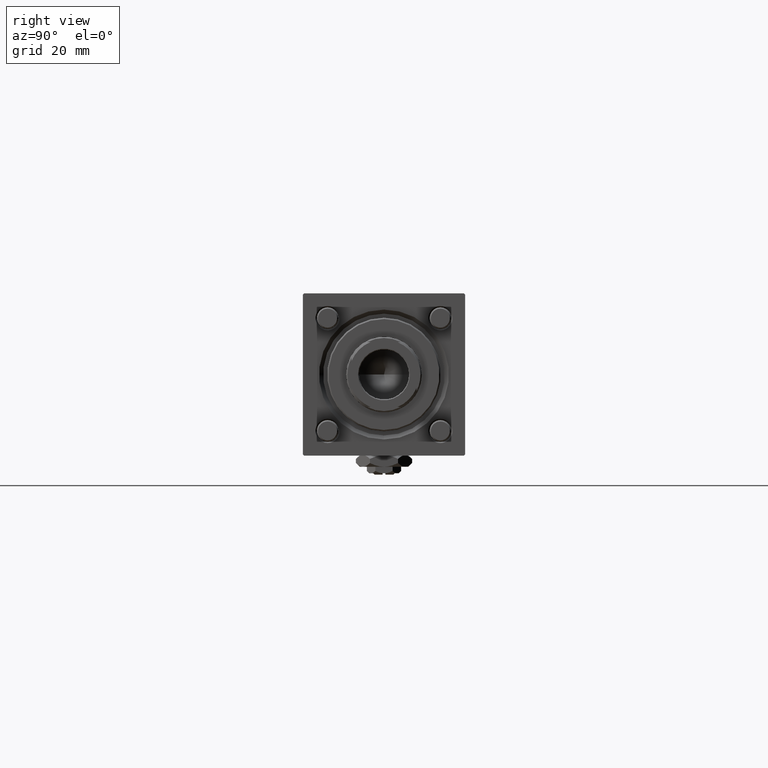
[diagram: clean part render]
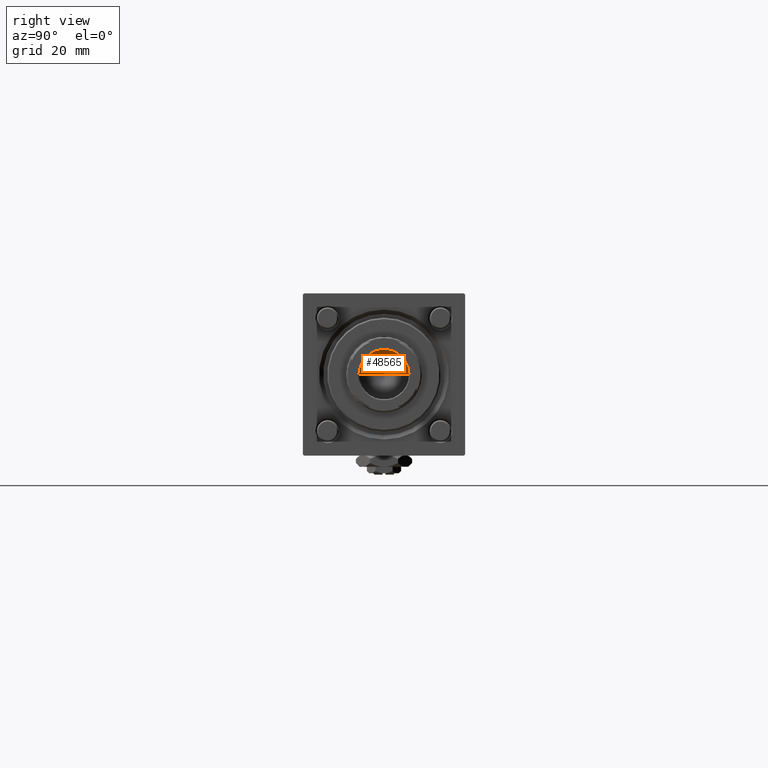
[diagram: same view with one face highlighted and labeled with its STEP entity id]
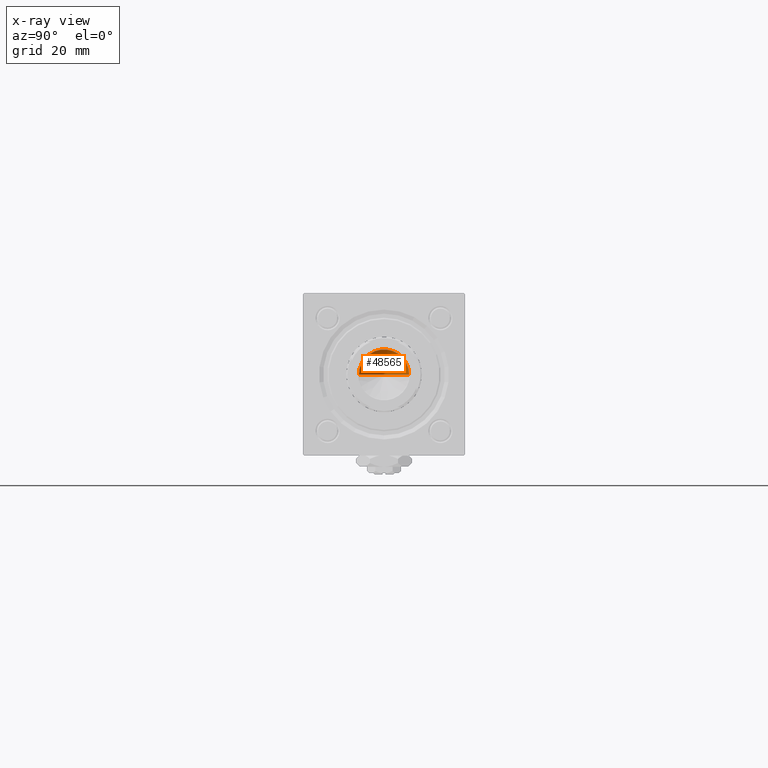
[diagram: x-ray of the same camera — body ghosted, the highlighted face saturated]
A machine part, right view. The second image highlights one B-rep face of the part: STEP entity #48565.
The next image is the same camera in x-ray: the body ghosted, the highlighted face saturated — about 0% of this face is hidden behind the body in this view.
In plain terms, the highlighted conical surface has half-angle 59 deg.
Its self-contained STEP definition (entity closure, byte-faithful):
#3032 = CARTESIAN_POINT ( 'NONE',  ( -9.249999999999992895, 1.132798289211300712E-15, 161.0000000000000000 ) ) ;
#3653 = VERTEX_POINT ( 'NONE', #3032 ) ;
#6686 = AXIS2_PLACEMENT_3D ( 'NONE', #8739, #50200, #40734 ) ;
#6733 = CARTESIAN_POINT ( 'NONE',  ( -9.249999999999992895, 1.132798289211300712E-15, 161.0000000000000000 ) ) ;
#7279 = VERTEX_POINT ( 'NONE', #36775 ) ;
#8739 = CARTESIAN_POINT ( 'NONE',  ( 0.000000000000000000, 0.000000000000000000, 161.0000000000000000 ) ) ;
#9646 = ORIENTED_EDGE ( 'NONE', *, *, #56841, .T. ) ;
#15630 = CONICAL_SURFACE ( 'NONE', #29826, 9.249999999999992895, 1.029744258676654312 ) ;
#16383 = FACE_OUTER_BOUND ( 'NONE', #22432, .T. ) ;
#17741 = EDGE_CURVE ( 'NONE', #3653, #45192, #19972, .T. ) ;
#18466 = EDGE_CURVE ( 'NONE', #7279, #45192, #40009, .T. ) ;
#19972 = CIRCLE ( 'NONE', #6686, 9.249999999999992895 ) ;
#20068 = DIRECTION ( 'NONE',  ( -0.8571673007021122226, 1.049727191138618572E-16, 0.5150380749100542666 ) ) ;
#20474 = VECTOR ( 'NONE', #20068, 1000.000000000000000 ) ;
#22432 = EDGE_LOOP ( 'NONE', ( #26511, #9646, #38619 ) ) ;
#26511 = ORIENTED_EDGE ( 'NONE', *, *, #18466, .F. ) ;
#28458 = VECTOR ( 'NONE', #49478, 1000.000000000000000 ) ;
#29826 = AXIS2_PLACEMENT_3D ( 'NONE', #50666, #40918, #40321 ) ;
#36775 = CARTESIAN_POINT ( 'NONE',  ( -9.769621978240258809E-15, 0.000000000000000000, 155.4420392739950785 ) ) ;
#38619 = ORIENTED_EDGE ( 'NONE', *, *, #17741, .T. ) ;
#40009 = LINE ( 'NONE', #44462, #28458 ) ;
#40321 = DIRECTION ( 'NONE',  ( 1.000000000000000000, 0.000000000000000000, 0.000000000000000000 ) ) ;
#40734 = DIRECTION ( 'NONE',  ( 1.000000000000000000, 0.000000000000000000, 0.000000000000000000 ) ) ;
#40918 = DIRECTION ( 'NONE',  ( -0.000000000000000000, -0.000000000000000000, 1.000000000000000000 ) ) ;
#44462 = CARTESIAN_POINT ( 'NONE',  ( 9.249999999999992895, 0.000000000000000000, 161.0000000000000000 ) ) ;
#45192 = VERTEX_POINT ( 'NONE', #52258 ) ;
#48565 = ADVANCED_FACE ( 'NONE', ( #16383 ), #15630, .F. ) ;
#49478 = DIRECTION ( 'NONE',  ( 0.8571673007021122226, 0.000000000000000000, 0.5150380749100542666 ) ) ;
#50200 = DIRECTION ( 'NONE',  ( -0.000000000000000000, -0.000000000000000000, 1.000000000000000000 ) ) ;
#50666 = CARTESIAN_POINT ( 'NONE',  ( 0.000000000000000000, 0.000000000000000000, 161.0000000000000000 ) ) ;
#52258 = CARTESIAN_POINT ( 'NONE',  ( 9.249999999999992895, 0.000000000000000000, 161.0000000000000000 ) ) ;
#56778 = LINE ( 'NONE', #6733, #20474 ) ;
#56841 = EDGE_CURVE ( 'NONE', #7279, #3653, #56778, .T. ) ;